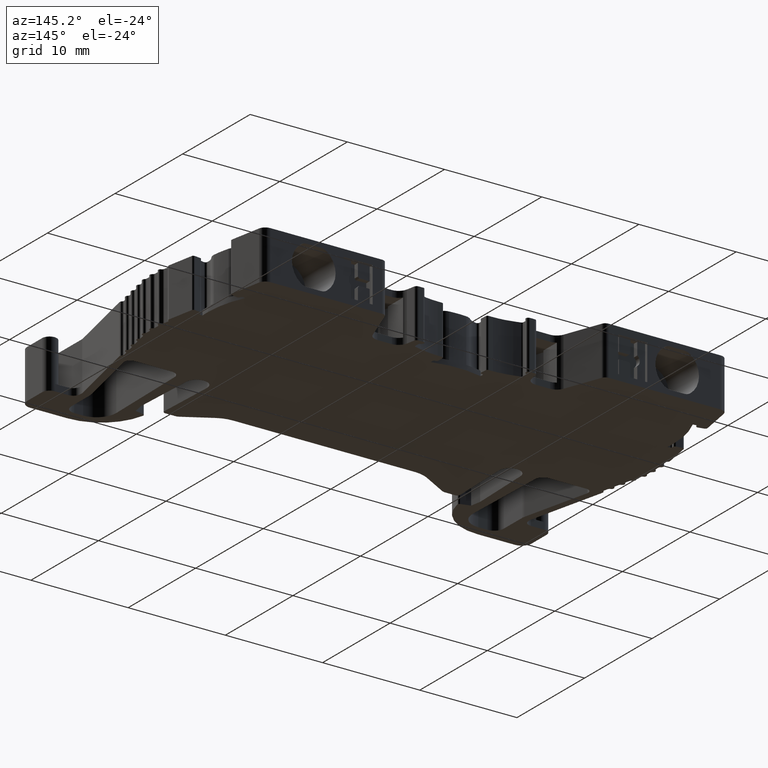
[diagram: clean part render]
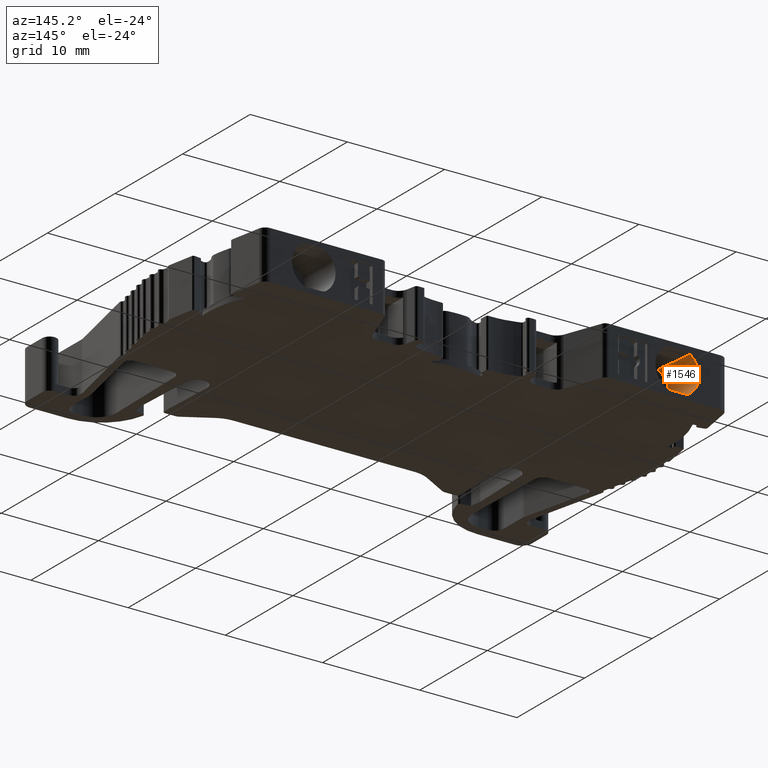
[diagram: same view with one face highlighted and labeled with its STEP entity id]
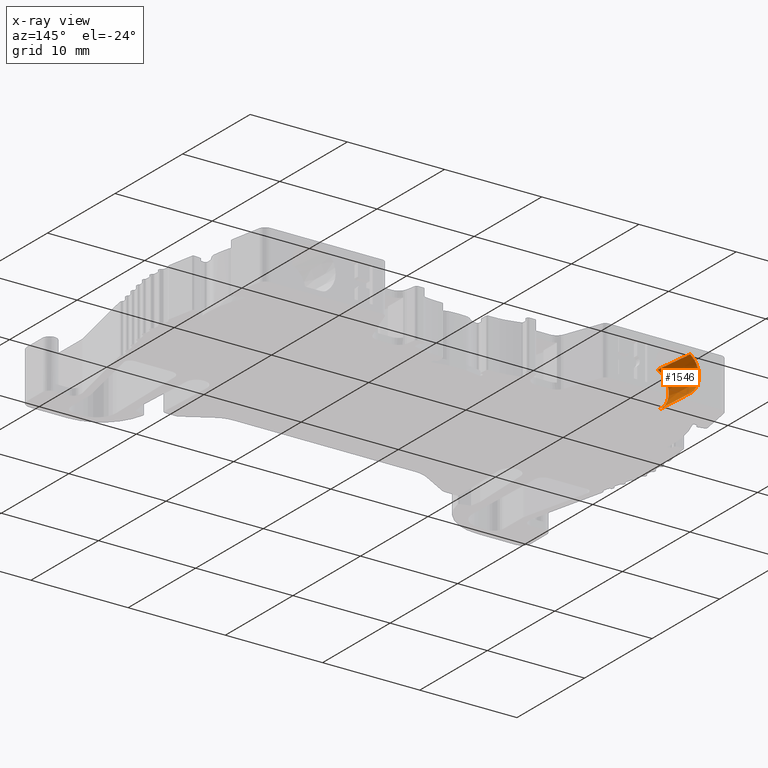
[diagram: x-ray of the same camera — body ghosted, the highlighted face saturated]
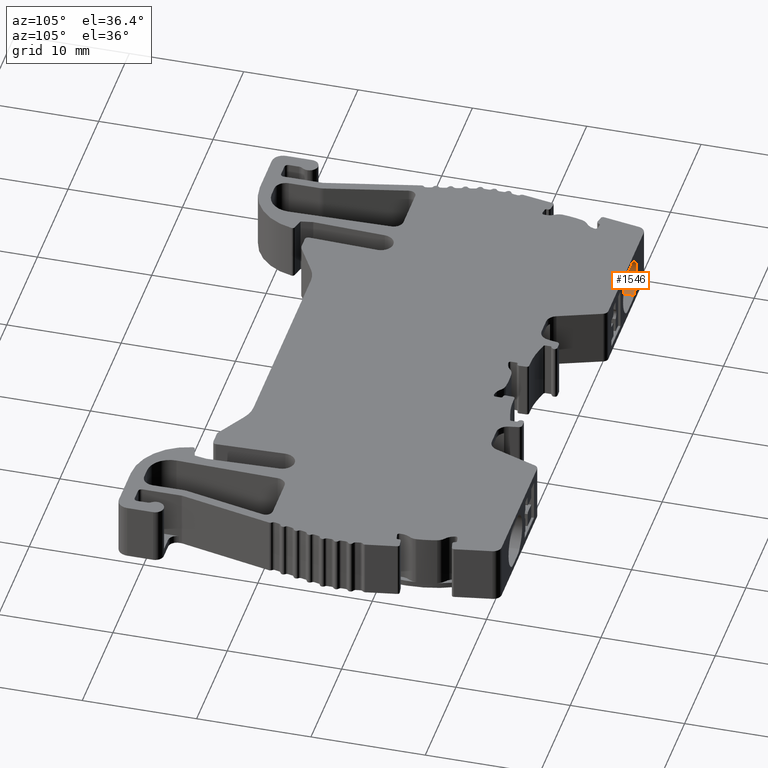
[diagram: same view with one face highlighted and labeled with its STEP entity id]
A machine part, auxiliary view. The second image highlights one B-rep face of the part: STEP entity #1546.
The next image is the same camera in x-ray: the body ghosted, the highlighted face saturated — about 0% of this face is hidden behind the body in this view.
A second angle (auxiliary view) of the same face is appended — the face is thin or edge-on in the first view.
In plain terms, the highlighted conical surface has half-angle 1.5 deg.
Its self-contained STEP definition (entity closure, byte-faithful):
#476 = ORIENTED_EDGE ( 'NONE', *, *, #9004, .F. ) ;
#500 = ORIENTED_EDGE ( 'NONE', *, *, #11527, .T. ) ;
#502 = ORIENTED_EDGE ( 'NONE', *, *, #11541, .T. ) ;
#506 = ORIENTED_EDGE ( 'NONE', *, *, #11471, .T. ) ;
#901 = EDGE_LOOP ( 'NONE', ( #500, #506, #502, #476 ) ) ;
#1546 = ADVANCED_FACE ( 'NONE', ( #7751 ), #10390, .F. ) ;
#2187 = DIRECTION ( 'NONE',  ( 0.0000000000000000000, -1.000000000000000000, 0.0000000000000000000 ) ) ;
#2197 = DIRECTION ( 'NONE',  ( 0.0000000000000000000, 0.0000000000000000000, -1.000000000000000000 ) ) ;
#2203 = CARTESIAN_POINT ( 'NONE',  ( 1915.677906811884900, 520.6674757026430600, 0.0000000000000000000 ) ) ;
#4170 = CARTESIAN_POINT ( 'NONE',  ( 1915.677906811884900, 516.3582387367231400, 0.0000000000000000000 ) ) ;
#4181 = DIRECTION ( 'NONE',  ( -0.0000000000000000000, -1.000000000000000000, -0.0000000000000000000 ) ) ;
#4197 = DIRECTION ( 'NONE',  ( 0.0000000000000000000, 0.0000000000000000000, 1.000000000000000000 ) ) ;
#4357 = CARTESIAN_POINT ( 'NONE',  ( 1914.335380905495000, 520.6674757026430600, 1.801569667078470000 ) ) ;
#4362 = CARTESIAN_POINT ( 'NONE',  ( 1914.670769346428200, 516.3582387367231400, -1.881316406063603200 ) ) ;
#4371 = CARTESIAN_POINT ( 'NONE',  ( 1914.430862110106100, 519.2297714076364600, 1.825768339796652000 ) ) ;
#4373 = CARTESIAN_POINT ( 'NONE',  ( 1914.536653472102400, 517.7927244838516600, 1.852128739644136400 ) ) ;
#4377 = CARTESIAN_POINT ( 'NONE',  ( 1914.670769346428200, 516.3582387367231400, 1.881316406063659400 ) ) ;
#4388 = CARTESIAN_POINT ( 'NONE',  ( 1914.536653052373100, 517.7927289732307400, -1.852128648298249700 ) ) ;
#4417 = CARTESIAN_POINT ( 'NONE',  ( 1914.430862153789800, 519.2297707498726100, -1.825768350867777800 ) ) ;
#4435 = CARTESIAN_POINT ( 'NONE',  ( 1914.335380905495000, 520.6674757026430600, -1.801569667078480000 ) ) ;
#6547 = CARTESIAN_POINT ( 'NONE',  ( 1914.335380905495000, 520.6674757026430600, 1.801569667078470000 ) ) ;
#6564 = CARTESIAN_POINT ( 'NONE',  ( 1914.670769346428200, 516.3582387367231400, -1.881316406063603200 ) ) ;
#6716 = CARTESIAN_POINT ( 'NONE',  ( 1914.670769346428200, 516.3582387367231400, 1.881316406063659400 ) ) ;
#6885 = CARTESIAN_POINT ( 'NONE',  ( 1914.335380905495000, 520.6674757026430600, -1.801569667078480000 ) ) ;
#7751 = FACE_OUTER_BOUND ( 'NONE', #901, .T. ) ;
#7755 = DIRECTION ( 'NONE',  ( 0.0000000000000000000, 0.0000000000000000000, 1.000000000000000000 ) ) ;
#7771 = DIRECTION ( 'NONE',  ( 0.0000000000000000000, 1.000000000000000000, 0.0000000000000000000 ) ) ;
#7783 = CARTESIAN_POINT ( 'NONE',  ( 1915.677906811884900, 513.3035004692279700, 0.0000000000000000000 ) ) ;
#9004 = EDGE_CURVE ( 'NONE', #10189, #10832, #12513, .T. ) ;
#9636 = AXIS2_PLACEMENT_3D ( 'NONE', #4170, #4181, #4197 ) ;
#9640 = CIRCLE ( 'NONE', #9636, 2.133934697700648400 ) ;
#10189 = VERTEX_POINT ( 'NONE', #6547 ) ;
#10211 = VERTEX_POINT ( 'NONE', #6564 ) ;
#10310 = VERTEX_POINT ( 'NONE', #6716 ) ;
#10368 = AXIS2_PLACEMENT_3D ( 'NONE', #7783, #7771, #7755 ) ;
#10390 = CONICAL_SURFACE ( 'NONE', #10368, 2.053939379616175100, 0.02618130666537877100 ) ;
#10832 = VERTEX_POINT ( 'NONE', #6885 ) ;
#11144 = B_SPLINE_CURVE_WITH_KNOTS ( 'NONE', 3,
 ( #4357, #4371, #4373, #4377 ),
 .UNSPECIFIED., .F., .F.,
 ( 4, 4 ),
 ( 0.0000000000000000000, 0.004323039171607723600 ),
 .UNSPECIFIED. ) ;
#11147 = B_SPLINE_CURVE_WITH_KNOTS ( 'NONE', 3,
 ( #4362, #4388, #4417, #4435 ),
 .UNSPECIFIED., .F., .F.,
 ( 4, 4 ),
 ( 0.003076477903648194700, 0.007399460228142654100 ),
 .UNSPECIFIED. ) ;
#11471 = EDGE_CURVE ( 'NONE', #10310, #10211, #9640, .T. ) ;
#11527 = EDGE_CURVE ( 'NONE', #10189, #10310, #11144, .T. ) ;
#11541 = EDGE_CURVE ( 'NONE', #10211, #10832, #11147, .T. ) ;
#12513 = CIRCLE ( 'NONE', #12517, 2.246781937497989800 ) ;
#12517 = AXIS2_PLACEMENT_3D ( 'NONE', #2203, #2187, #2197 ) ;